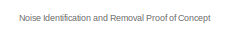
[diagram: root canvas - part 1/4, top left region]
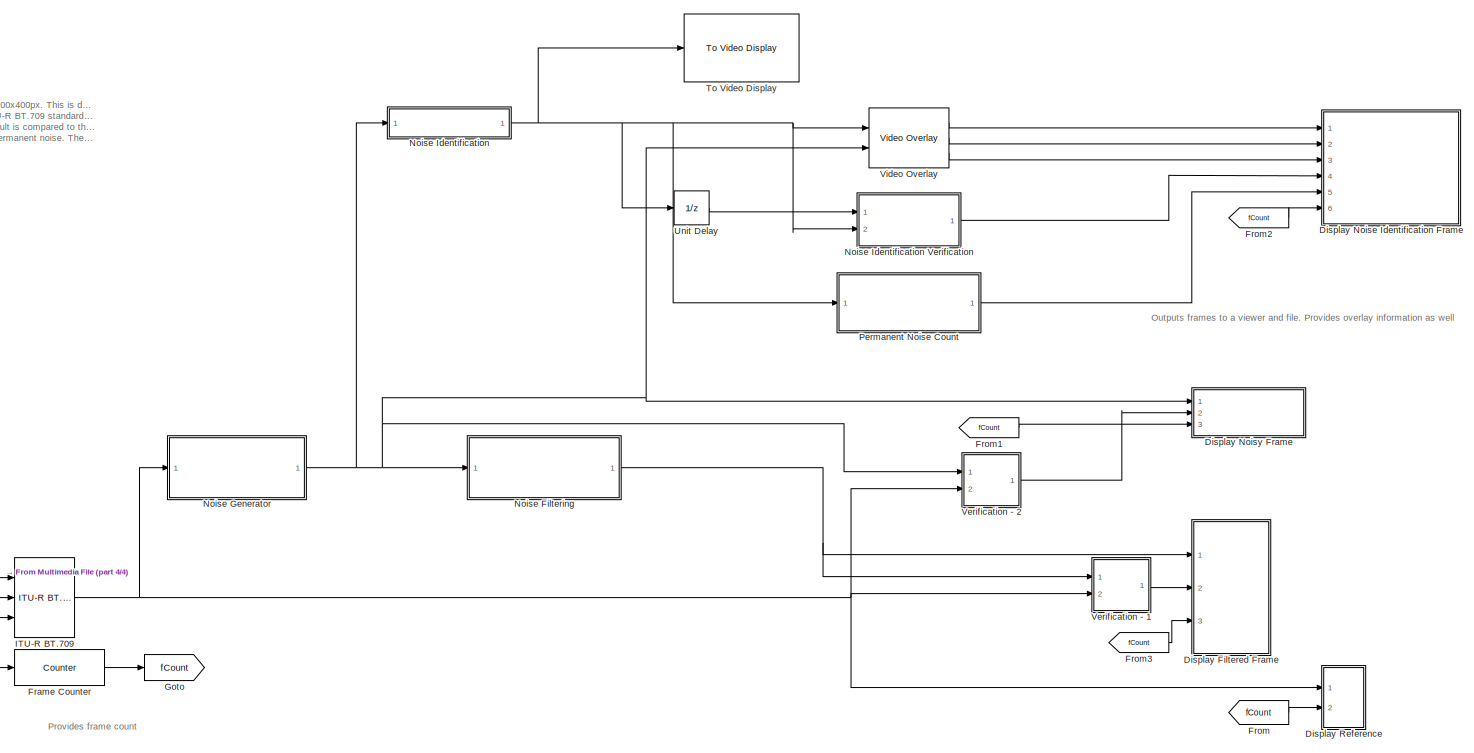
[diagram: root canvas - part 2/4, most of the canvas]
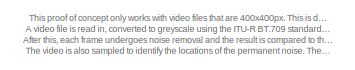
[diagram: root canvas - part 3/4, top left region]
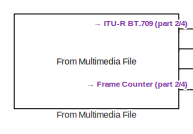
[diagram: root canvas - part 4/4, bottom left region]
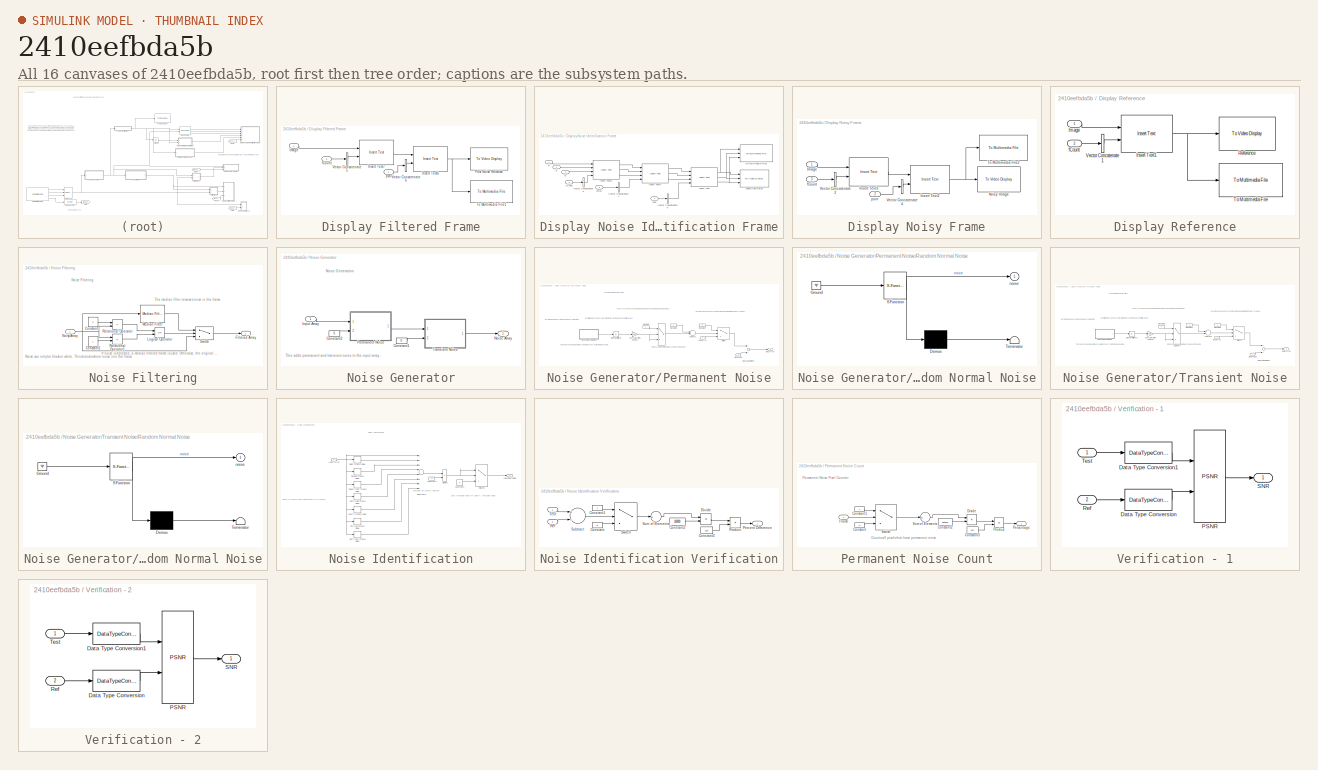
[diagram: thumbnail index - all 16 canvases of the model, root first then tree order]
MODEL slx_2410eefbda5b
KIND model
CONFIG AbsTol = auto
CONFIG EnableMultiTasking = off
CONFIG FixedStep = auto
CONFIG MaxStep = auto
CONFIG MinStep = auto
CONFIG RelTol = 1e-3
CONFIG SampleTimeConstraint = Unconstrained
CONFIG Solver = VariableStepAuto
CONFIG SolverName = VariableStepAuto
CONFIG StartTime = 1
CONFIG StopTime = 16
BLOCK [SubSystem] Display Filtered Frame
  Ports = [3]
  RequestExecContextInheritance = off
BLOCK [Inport] Display Filtered Frame/Image
  IconDisplay = Port number
BLOCK [Reference] Display Filtered Frame/Insert Text6  REF=visiontextngfix/Insert Text
  Ports = [2, 1]
  SourceBlock = visiontextngfix/Insert Text
  SourceProductBaseCode = VP
  SourceProductName = Computer Vision System Toolbox
  SourceType = Insert Text
BLOCK [Reference] Display Filtered Frame/Insert Text7  REF=visiontextngfix/Insert Text
  Ports = [2, 1]
  SourceBlock = visiontextngfix/Insert Text
  SourceProductBaseCode = VP
  SourceProductName = Computer Vision System Toolbox
  SourceType = Insert Text
BLOCK [Reference] Display Filtered Frame/Post Noise Removal  REF=visionsinks/To Video Display
  Ports = [1]
  SourceBlock = visionsinks/To Video Display
  SourceProductBaseCode = VP
  SourceProductName = Computer Vision System Toolbox
  SourceType = To Video Display
BLOCK [Reference] Display Filtered Frame/To Multimedia File1  REF=dspvision/To Multimedia File
  Ports = [1]
  SourceBlock = dspvision/To Multimedia File
  SourceProductBaseCode = VP
  SourceProductName = Computer Vision System Toolbox
  SourceType = To Multimedia File
BLOCK [Concatenate] Display Filtered Frame/Vector Concatenate5
  NumInputs = 1
  Ports = [1, 1]
BLOCK [Concatenate] Display Filtered Frame/Vector Concatenate6
  NumInputs = 1
  Ports = [1, 1]
BLOCK [Inport] Display Filtered Frame/fCount
  IconDisplay = Port number
  Port = 3
BLOCK [Inport] Display Filtered Frame/psnr
  IconDisplay = Port number
  Port = 2
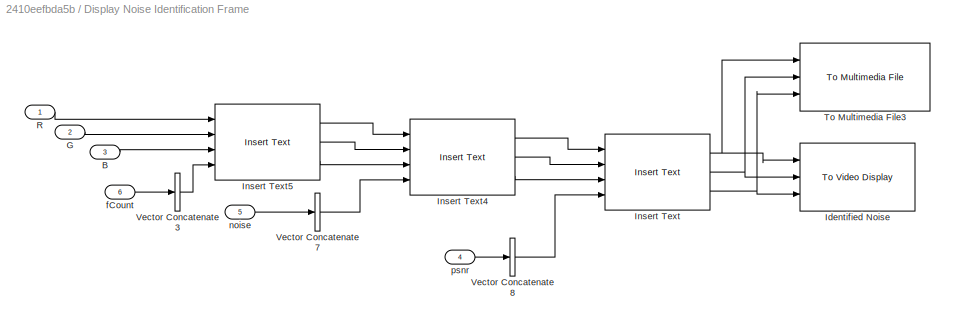
BLOCK [SubSystem] Display Noise Identification Frame
  Ports = [6]
  RequestExecContextInheritance = off
BLOCK [Inport] Display Noise Identification Frame/B
  IconDisplay = Port number
  Port = 3
BLOCK [Inport] Display Noise Identification Frame/G
  IconDisplay = Port number
  Port = 2
BLOCK [Reference] Display Noise Identification Frame/Identified Noise  REF=visionsinks/To Video Display
  Ports = [3]
  SourceBlock = visionsinks/To Video Display
  SourceProductBaseCode = VP
  SourceProductName = Computer Vision System Toolbox
  SourceType = To Video Display
BLOCK [Reference] Display Noise Identification Frame/Insert Text  REF=visiontextngfix/Insert Text
  Ports = [4, 3]
  SourceBlock = visiontextngfix/Insert Text
  SourceProductBaseCode = VP
  SourceProductName = Computer Vision System Toolbox
  SourceType = Insert Text
BLOCK [Reference] Display Noise Identification Frame/Insert Text4  REF=visiontextngfix/Insert Text
  Ports = [4, 3]
  SourceBlock = visiontextngfix/Insert Text
  SourceProductBaseCode = VP
  SourceProductName = Computer Vision System Toolbox
  SourceType = Insert Text
BLOCK [Reference] Display Noise Identification Frame/Insert Text5  REF=visiontextngfix/Insert Text
  Ports = [4, 3]
  SourceBlock = visiontextngfix/Insert Text
  SourceProductBaseCode = VP
  SourceProductName = Computer Vision System Toolbox
  SourceType = Insert Text
BLOCK [Inport] Display Noise Identification Frame/R
  IconDisplay = Port number
BLOCK [Reference] Display Noise Identification Frame/To Multimedia File3  REF=dspvision/To Multimedia File
  Ports = [3]
  SourceBlock = dspvision/To Multimedia File
  SourceProductBaseCode = VP
  SourceProductName = Computer Vision System Toolbox
  SourceType = To Multimedia File
BLOCK [Concatenate] Display Noise Identification Frame/Vector Concatenate3
  NumInputs = 1
  Ports = [1, 1]
BLOCK [Concatenate] Display Noise Identification Frame/Vector Concatenate7
  NumInputs = 1
  Ports = [1, 1]
BLOCK [Concatenate] Display Noise Identification Frame/Vector Concatenate8
  NumInputs = 1
  Ports = [1, 1]
BLOCK [Inport] Display Noise Identification Frame/fCount
  IconDisplay = Port number
  Port = 6
BLOCK [Inport] Display Noise Identification Frame/noise
  IconDisplay = Port number
  Port = 5
BLOCK [Inport] Display Noise Identification Frame/psnr
  IconDisplay = Port number
  Port = 4
BLOCK [SubSystem] Display Noisy Frame
  Ports = [3]
  RequestExecContextInheritance = off
BLOCK [Inport] Display Noisy Frame/Image
  IconDisplay = Port number
BLOCK [Reference] Display Noisy Frame/Insert Text2  REF=visiontextngfix/Insert Text
  Ports = [2, 1]
  SourceBlock = visiontextngfix/Insert Text
  SourceProductBaseCode = VP
  SourceProductName = Computer Vision System Toolbox
  SourceType = Insert Text
BLOCK [Reference] Display Noisy Frame/Insert Text3  REF=visiontextngfix/Insert Text
  Ports = [2, 1]
  SourceBlock = visiontextngfix/Insert Text
  SourceProductBaseCode = VP
  SourceProductName = Computer Vision System Toolbox
  SourceType = Insert Text
BLOCK [Reference] Display Noisy Frame/Noisy Image  REF=visionsinks/To Video Display
  Ports = [1]
  SourceBlock = visionsinks/To Video Display
  SourceProductBaseCode = VP
  SourceProductName = Computer Vision System Toolbox
  SourceType = To Video Display
BLOCK [Reference] Display Noisy Frame/To Multimedia File2  REF=dspvision/To Multimedia File
  Ports = [1]
  SourceBlock = dspvision/To Multimedia File
  SourceProductBaseCode = VP
  SourceProductName = Computer Vision System Toolbox
  SourceType = To Multimedia File
BLOCK [Concatenate] Display Noisy Frame/Vector Concatenate2
  NumInputs = 1
  Ports = [1, 1]
BLOCK [Concatenate] Display Noisy Frame/Vector Concatenate4
  NumInputs = 1
  Ports = [1, 1]
BLOCK [Inport] Display Noisy Frame/fCount
  IconDisplay = Port number
  Port = 3
BLOCK [Inport] Display Noisy Frame/psnr
  IconDisplay = Port number
  Port = 2
BLOCK [SubSystem] Display Reference
  Ports = [2]
  RequestExecContextInheritance = off
BLOCK [Inport] Display Reference/Image
  IconDisplay = Port number
BLOCK [Reference] Display Reference/Insert Text1  REF=visiontextngfix/Insert Text
  Ports = [2, 1]
  SourceBlock = visiontextngfix/Insert Text
  SourceProductBaseCode = VP
  SourceProductName = Computer Vision System Toolbox
  SourceType = Insert Text
BLOCK [Reference] Display Reference/Reference  REF=visionsinks/To Video Display
  Ports = [1]
  SourceBlock = visionsinks/To Video Display
  SourceProductBaseCode = VP
  SourceProductName = Computer Vision System Toolbox
  SourceType = To Video Display
BLOCK [Reference] Display Reference/To Multimedia File  REF=dspvision/To Multimedia File
  Ports = [1]
  SourceBlock = dspvision/To Multimedia File
  SourceProductBaseCode = VP
  SourceProductName = Computer Vision System Toolbox
  SourceType = To Multimedia File
BLOCK [Concatenate] Display Reference/Vector Concatenate1
  NumInputs = 1
  Ports = [1, 1]
BLOCK [Inport] Display Reference/fCount
  IconDisplay = Port number
  Port = 2
BLOCK [Reference] Frame Counter  REF=dspswit3/Counter
  Ports = [1, 1]
  SourceBlock = dspswit3/Counter
  SourceProductBaseCode = DS
  SourceProductName = DSP System Toolbox
  SourceType = Counter
BLOCK [From] From
  GotoTag = fCount
BLOCK [Reference] From Multimedia File  REF=dspvision/From Multimedia File
  Ports = [0, 4]
  SourceBlock = dspvision/From Multimedia File
  SourceProductBaseCode = VP
  SourceProductName = Computer Vision System Toolbox
  SourceType = From Multimedia File
BLOCK [From] From1
  GotoTag = fCount
BLOCK [From] From2
  GotoTag = fCount
BLOCK [From] From3
  GotoTag = fCount
BLOCK [Goto] Goto
  GotoTag = fCount
BLOCK [Reference] ITU-R BT.709  REF=library/ITU-R BT.709  (lib defined in slx_3ff6af1150bc, slx_4edaf752ec85, +11 more)
  Ports = [3, 1]
  SourceBlock = library/ITU-R BT.709
  SourceType = SubSystem
BLOCK [SubSystem] Noise Filtering
  Ports = [1, 1]
  RequestExecContextInheritance = off
BLOCK [Constant] Noise Filtering/Constant
  SampleTime = -1
  Value = 0
BLOCK [Constant] Noise Filtering/Constant1
  SampleTime = -1
BLOCK [Outport] Noise Filtering/Filtered Array
  IconDisplay = Port number
BLOCK [Logic] Noise Filtering/Logical Operator
  AllPortsSameDT = off
  Operator = OR
  OutDataTypeStr = boolean
  Ports = [2, 1]
BLOCK [Reference] Noise Filtering/Median Filter  REF=visionanalysis/Median Filter
  Ports = [1, 1]
  SourceBlock = visionanalysis/Median Filter
  SourceProductBaseCode = VP
  SourceProductName = Computer Vision System Toolbox
  SourceType = Median Filter
BLOCK [Inport] Noise Filtering/Noisy Array
  IconDisplay = Port number
BLOCK [RelationalOperator] Noise Filtering/Relational Operator
  InputSameDT = off
  Operator = ==
  OutDataTypeStr = boolean
  Ports = [2, 1]
BLOCK [RelationalOperator] Noise Filtering/Relational Operator1
  InputSameDT = off
  Operator = ==
  OutDataTypeStr = boolean
  Ports = [2, 1]
BLOCK [Switch] Noise Filtering/Switch
  Criteria = u2 ~= 0
  InputSameDT = off
  SaturateOnIntegerOverflow = off
BLOCK [SubSystem] Noise Generator
  Ports = [1, 1]
  RequestExecContextInheritance = off
BLOCK [Constant] Noise Generator/Constant1
  SampleTime = -1
  Value = 0
BLOCK [Constant] Noise Generator/Constant2
  SampleTime = -1
  Value = 0
BLOCK [Inport] Noise Generator/Input Array
  IconDisplay = Port number
BLOCK [Outport] Noise Generator/Noise Array
  IconDisplay = Port number
BLOCK [SubSystem] Noise Generator/Permanent Noise
  Ports = [2, 1]
  RequestExecContextInheritance = off
BLOCK [Switch] Noise Generator/Permanent Noise/Clamper
  Criteria = u2 > Threshold
  InputSameDT = off
  SaturateOnIntegerOverflow = off
  Threshold = 1
BLOCK [Inport] Noise Generator/Permanent Noise/Input Array
  IconDisplay = Port number
BLOCK [Constant] Noise Generator/Permanent Noise/Max Gain
  SampleTime = -1
BLOCK [Constant] Noise Generator/Permanent Noise/Max Gain1
  SampleTime = -1
BLOCK [Constant] Noise Generator/Permanent Noise/Max Gain2
  SampleTime = -1
BLOCK [Sum] Noise Generator/Permanent Noise/Mean Adjustment
  InputSameDT = off
  OutDataTypeStr = Inherit: Inherit via internal rule
  Ports = [2, 1]
  SaturateOnIntegerOverflow = off
BLOCK [Inport] Noise Generator/Permanent Noise/Mean Value
  IconDisplay = Port number
  Port = 2
BLOCK [Outport] Noise Generator/Permanent Noise/Noisy Array
  IconDisplay = Port number
BLOCK [Gain] Noise Generator/Permanent Noise/Oversaturation Control
  Gain = Gain
  OutDataTypeStr = Inherit: Inherit via internal rule
  ParamDataTypeStr = Inherit: Inherit via internal rule
  SaturateOnIntegerOverflow = off
BLOCK [SubSystem] Noise Generator/Permanent Noise/Random Normal Noise
  ErrorFcn = Stateflow.Translate.translate
  PermitHierarchicalResolution = ExplicitOnly
  Ports = [0, 1]
  RequestExecContextInheritance = off
  SFBlockType = MATLAB Function
  TreatAsAtomicUnit = on
BLOCK [Demux] Noise Generator/Permanent Noise/Random Normal Noise/ Demux 
  Outputs = 1
  Ports = [1, 1]
BLOCK [Ground] Noise Generator/Permanent Noise/Random Normal Noise/ Ground 
BLOCK [S-Function] Noise Generator/Permanent Noise/Random Normal Noise/ SFunction 
  EnableBusSupport = on
  FunctionName = sf_sfun
  PortCounts = [1 2]
  Ports = [1, 2]
  SFcnIsStateOwnerBlock = off
  SFunctionDeploymentMode = off
  Tag = Stateflow S-Function impl_dsgn 1
BLOCK [Terminator] Noise Generator/Permanent Noise/Random Normal Noise/ Terminator 
BLOCK [Outport] Noise Generator/Permanent Noise/Random Normal Noise/noise
  IconDisplay = Port number
BLOCK [Abs] Noise Generator/Permanent Noise/Sign Conditioner
  SaturateOnIntegerOverflow = off
BLOCK [Sum] Noise Generator/Permanent Noise/Subtract
  InputSameDT = off
  Inputs = +-
  OutDataTypeStr = Inherit: Inherit via internal rule
  Ports = [2, 1]
  SaturateOnIntegerOverflow = off
BLOCK [Switch] Noise Generator/Permanent Noise/Switch
  InputSameDT = off
  SaturateOnIntegerOverflow = off
  Threshold = 0.6
BLOCK [SubSystem] Noise Generator/Transient Noise
  Ports = [2, 1]
  RequestExecContextInheritance = off
BLOCK [Switch] Noise Generator/Transient Noise/Clamper1
  Criteria = u2 > Threshold
  InputSameDT = off
  SaturateOnIntegerOverflow = off
  Threshold = 1
BLOCK [Inport] Noise Generator/Transient Noise/Input Array
  IconDisplay = Port number
BLOCK [Constant] Noise Generator/Transient Noise/Max Gain3
  SampleTime = -1
BLOCK [Constant] Noise Generator/Transient Noise/Max Gain4
  SampleTime = -1
BLOCK [Constant] Noise Generator/Transient Noise/Max Gain5
  SampleTime = -1
BLOCK [Sum] Noise Generator/Transient Noise/Mean Adjustment1
  InputSameDT = off
  OutDataTypeStr = Inherit: Inherit via internal rule
  Ports = [2, 1]
  SaturateOnIntegerOverflow = off
BLOCK [Inport] Noise Generator/Transient Noise/Mean Value
  IconDisplay = Port number
  Port = 2
BLOCK [Outport] Noise Generator/Transient Noise/Noisy Array
  IconDisplay = Port number
BLOCK [Gain] Noise Generator/Transient Noise/Oversaturation Control1
  Gain = Gain
  OutDataTypeStr = Inherit: Inherit via internal rule
  ParamDataTypeStr = Inherit: Inherit via internal rule
  SaturateOnIntegerOverflow = off
BLOCK [SubSystem] Noise Generator/Transient Noise/Random Normal Noise
  ErrorFcn = Stateflow.Translate.translate
  PermitHierarchicalResolution = ExplicitOnly
  Ports = [0, 1]
  RequestExecContextInheritance = off
  SFBlockType = MATLAB Function
  TreatAsAtomicUnit = on
BLOCK [Demux] Noise Generator/Transient Noise/Random Normal Noise/ Demux 
  Outputs = 1
  Ports = [1, 1]
BLOCK [Ground] Noise Generator/Transient Noise/Random Normal Noise/ Ground 
BLOCK [S-Function] Noise Generator/Transient Noise/Random Normal Noise/ SFunction 
  EnableBusSupport = on
  FunctionName = sf_sfun
  PortCounts = [1 2]
  Ports = [1, 2]
  SFcnIsStateOwnerBlock = off
  SFunctionDeploymentMode = off
  Tag = Stateflow S-Function impl_dsgn 2
BLOCK [Terminator] Noise Generator/Transient Noise/Random Normal Noise/ Terminator 
BLOCK [Outport] Noise Generator/Transient Noise/Random Normal Noise/noise
  IconDisplay = Port number
BLOCK [Abs] Noise Generator/Transient Noise/Sign Conditioner1
  SaturateOnIntegerOverflow = off
BLOCK [Sum] Noise Generator/Transient Noise/Subtract1
  InputSameDT = off
  Inputs = +-
  OutDataTypeStr = Inherit: Inherit via internal rule
  Ports = [2, 1]
  SaturateOnIntegerOverflow = off
BLOCK [Switch] Noise Generator/Transient Noise/Switch1
  InputSameDT = off
  SaturateOnIntegerOverflow = off
  Threshold = 0.6
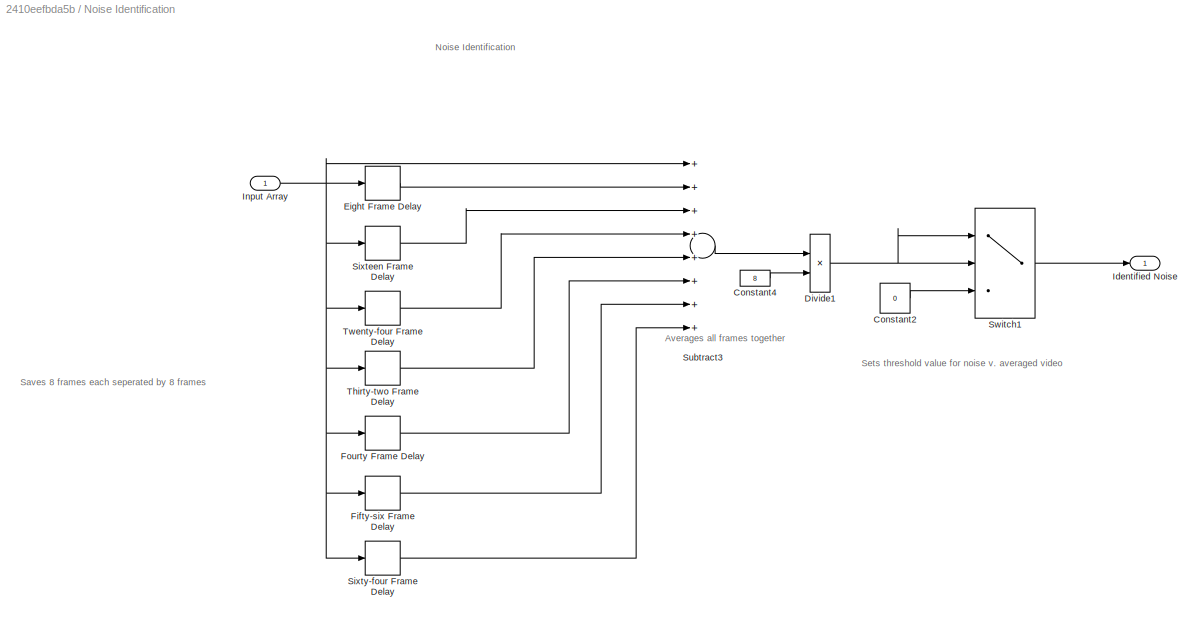
BLOCK [SubSystem] Noise Identification
  Ports = [1, 1]
  RequestExecContextInheritance = off
BLOCK [SubSystem] Noise Identification Verification
  Ports = [2, 1]
  RequestExecContextInheritance = off
BLOCK [Constant] Noise Identification Verification/Constant
  SampleTime = -1
  Value = 0
BLOCK [Constant] Noise Identification Verification/Constant1
  SampleTime = -1
BLOCK [Constant] Noise Identification Verification/Constant2
  SampleTime = -1
  Value = 160000
BLOCK [Constant] Noise Identification Verification/Constant3
  SampleTime = -1
  Value = 100
BLOCK [Product] Noise Identification Verification/Divide
  InputSameDT = off
  Inputs = */
  OutDataTypeStr = Inherit: Inherit via internal rule
  Ports = [2, 1]
BLOCK [Outport] Noise Identification Verification/Percent Difference
  IconDisplay = Port number
BLOCK [Product] Noise Identification Verification/Product
  InputSameDT = off
  OutDataTypeStr = Inherit: Inherit via internal rule
  Ports = [2, 1]
  RndMeth = Floor
  SaturateOnIntegerOverflow = off
BLOCK [Inport] Noise Identification Verification/Ref
  IconDisplay = Port number
  Port = 2
BLOCK [Sum] Noise Identification Verification/Subtract
  InputSameDT = off
  Inputs = +-
  OutDataTypeStr = Inherit: Inherit via internal rule
  Ports = [2, 1]
  SaturateOnIntegerOverflow = off
BLOCK [Sum] Noise Identification Verification/Sum of Elements
  InputSameDT = off
  Inputs = +
  OutDataTypeStr = Inherit: Inherit via internal rule
  Ports = [1, 1]
  SaturateOnIntegerOverflow = off
BLOCK [Switch] Noise Identification Verification/Switch
  Criteria = u2 ~= 0
  InputSameDT = off
  SaturateOnIntegerOverflow = off
  Threshold = 0.7
BLOCK [Inport] Noise Identification Verification/Test
  IconDisplay = Port number
BLOCK [Constant] Noise Identification/Constant2
  SampleTime = -1
  Value = 0
BLOCK [Constant] Noise Identification/Constant4
  SampleTime = -1
  Value = 8
BLOCK [Product] Noise Identification/Divide1
  InputSameDT = off
  Inputs = */
  OutDataTypeStr = Inherit: Inherit via internal rule
  Ports = [2, 1]
BLOCK [Delay] Noise Identification/Eight Frame Delay
  DelayLength = 8
  InputPortMap = u0
  Ports = [1, 1]
BLOCK [Delay] Noise Identification/Fifty-six Frame Delay
  DelayLength = 56
  InputPortMap = u0
  Ports = [1, 1]
BLOCK [Delay] Noise Identification/Fourty Frame Delay
  DelayLength = 40
  InputPortMap = u0
  Ports = [1, 1]
BLOCK [Outport] Noise Identification/Identified Noise
  IconDisplay = Port number
BLOCK [Inport] Noise Identification/Input Array
  IconDisplay = Port number
BLOCK [Delay] Noise Identification/Sixteen Frame Delay
  DelayLength = 16
  InputPortMap = u0
  Ports = [1, 1]
BLOCK [Delay] Noise Identification/Sixty-four Frame Delay
  DelayLength = 64
  InputPortMap = u0
  Ports = [1, 1]
BLOCK [Sum] Noise Identification/Subtract3
  InputSameDT = off
  Inputs = ++++++++
  OutDataTypeStr = Inherit: Inherit via internal rule
  Ports = [8, 1]
  SaturateOnIntegerOverflow = off
BLOCK [Switch] Noise Identification/Switch1
  Criteria = u2 > Threshold
  InputSameDT = off
  SaturateOnIntegerOverflow = off
  Threshold = 0.95
BLOCK [Delay] Noise Identification/Thirty-two Frame Delay
  DelayLength = 32
  InputPortMap = u0
  Ports = [1, 1]
BLOCK [Delay] Noise Identification/Twenty-four Frame Delay
  DelayLength = 24
  InputPortMap = u0
  Ports = [1, 1]
BLOCK [SubSystem] Permanent Noise Count
  Ports = [1, 1]
  RequestExecContextInheritance = off
BLOCK [Constant] Permanent Noise Count/Constant
  SampleTime = -1
  Value = 0
BLOCK [Constant] Permanent Noise Count/Constant1
  SampleTime = -1
BLOCK [Constant] Permanent Noise Count/Constant2
  SampleTime = -1
  Value = 160000
BLOCK [Constant] Permanent Noise Count/Constant3
  SampleTime = -1
  Value = 100
BLOCK [Product] Permanent Noise Count/Divide
  InputSameDT = off
  Inputs = */
  OutDataTypeStr = Inherit: Inherit via internal rule
  Ports = [2, 1]
BLOCK [Inport] Permanent Noise Count/Frame
  IconDisplay = Port number
BLOCK [Outport] Permanent Noise Count/Percentage
  IconDisplay = Port number
BLOCK [Product] Permanent Noise Count/Product
  InputSameDT = off
  OutDataTypeStr = Inherit: Inherit via internal rule
  Ports = [2, 1]
  RndMeth = Floor
  SaturateOnIntegerOverflow = off
BLOCK [Sum] Permanent Noise Count/Sum of Elements
  InputSameDT = off
  Inputs = +
  OutDataTypeStr = Inherit: Inherit via internal rule
  Ports = [1, 1]
  SaturateOnIntegerOverflow = off
BLOCK [Switch] Permanent Noise Count/Switch
  InputSameDT = off
  SaturateOnIntegerOverflow = off
  Threshold = 0.7
BLOCK [Reference] To Video Display  REF=visionsinks/To Video Display
  Ports = [1]
  SourceBlock = visionsinks/To Video Display
  SourceProductBaseCode = VP
  SourceProductName = Computer Vision System Toolbox
  SourceType = To Video Display
BLOCK [UnitDelay] Unit Delay
  InputProcessing = Elements as channels (sample based)
  SampleTime = -1
BLOCK [SubSystem] Verification - 1
  Ports = [2, 1]
  RequestExecContextInheritance = off
BLOCK [DataTypeConversion] Verification - 1/Data Type Conversion
  OutDataTypeStr = double
  RndMeth = Floor
  SaturateOnIntegerOverflow = off
BLOCK [DataTypeConversion] Verification - 1/Data Type Conversion1
  OutDataTypeStr = double
  RndMeth = Floor
  SaturateOnIntegerOverflow = off
BLOCK [Reference] Verification - 1/PSNR  REF=visionstatistics/PSNR
  Ports = [2, 1]
  SourceBlock = visionstatistics/PSNR
  SourceProductBaseCode = VP
  SourceProductName = Computer Vision System Toolbox
  SourceType = PSNR
BLOCK [Inport] Verification - 1/Ref
  IconDisplay = Port number
  Port = 2
BLOCK [Outport] Verification - 1/SNR
  IconDisplay = Port number
BLOCK [Inport] Verification - 1/Test
  IconDisplay = Port number
BLOCK [SubSystem] Verification - 2
  Ports = [2, 1]
  RequestExecContextInheritance = off
BLOCK [DataTypeConversion] Verification - 2/Data Type Conversion
  OutDataTypeStr = double
  RndMeth = Floor
  SaturateOnIntegerOverflow = off
BLOCK [DataTypeConversion] Verification - 2/Data Type Conversion1
  OutDataTypeStr = double
  RndMeth = Floor
  SaturateOnIntegerOverflow = off
BLOCK [Reference] Verification - 2/PSNR  REF=visionstatistics/PSNR
  Ports = [2, 1]
  SourceBlock = visionstatistics/PSNR
  SourceProductBaseCode = VP
  SourceProductName = Computer Vision System Toolbox
  SourceType = PSNR
BLOCK [Inport] Verification - 2/Ref
  IconDisplay = Port number
  Port = 2
BLOCK [Outport] Verification - 2/SNR
  IconDisplay = Port number
BLOCK [Inport] Verification - 2/Test
  IconDisplay = Port number
BLOCK [Reference] Video Overlay  REF=library/Video Overlay  (lib defined in slx_3ff6af1150bc, slx_4edaf752ec85, +11 more)
  Ports = [2, 3]
  SourceBlock = library/Video Overlay
ANNOTATION (root): Noise Identification and Removal Proof of Concept
ANNOTATION (root): Outputs frames to a viewer and file. Provides overlay information as well
ANNOTATION (root): Provides frame count
ANNOTATION (root): This proof of concept only works with video files that are 400x400px. This is due to a limitation in the noise generation and a constant to identify the total number of pixels in the image. A video file is read in, converted to greyscale using the ITU-R BT.709 standard. Then, noise is added to each frame (both permanent and transient noise). After this, each frame undergoes noise removal and the r...<+269ch>
ANNOTATION Noise Filtering: Noise Filtering
ANNOTATION Noise Filtering: If noise is detected, a median filtered frame is used. Otherwise, the original frame is used.
ANNOTATION Noise Filtering: Noise can only be black or white. This detects where noise is in the frame
ANNOTATION Noise Filtering: The median filter removes noise in the frame.
ANNOTATION Noise Generator: Noise Generation
ANNOTATION Noise Generator: This adds permanent and transient noise to the input array.
ANNOTATION Noise Generator/Permanent Noise: Permanent Noise Generation
ANNOTATION Noise Generator/Permanent Noise: By multiplying by an oversaturation factor, certain noise can be filtered out.
ANNOTATION Noise Generator/Permanent Noise: Here, the noise upper threshold is set and is applied to the input array. Noise is either 100% or 0%.
ANNOTATION Noise Generator/Permanent Noise: Noise should be white, not black. This inverts the noise
ANNOTATION Noise Generator/Permanent Noise: Normal noise is generated using a MATLAB function.
ANNOTATION Noise Generator/Permanent Noise: The array can only have a maximum value of one. This clamps the noise to a maximum value of one.
ANNOTATION Noise Generator/Permanent Noise: This noise can be both positive or negative. To correct for this, the absolute value of each cell is taken.
ANNOTATION Noise Generator/Transient Noise: Transient Noise Generation
ANNOTATION Noise Generator/Transient Noise: By multiplying by an oversaturation factor, certain noise can be filtered out.
ANNOTATION Noise Generator/Transient Noise: Here, the noise upper threshold is set and is applied to the input array. Noise is either 100% or 0%.
ANNOTATION Noise Generator/Transient Noise: Noise should be white, not black. This inverts the noise
ANNOTATION Noise Generator/Transient Noise: Normal noise is generated using a MATLAB function.
ANNOTATION Noise Generator/Transient Noise: The array can only have a maximum value of one. This clamps the noise to a maximum value of one.
ANNOTATION Noise Generator/Transient Noise: This noise can be both positive or negative. To correct for this, the absolute value of each cell is taken.
ANNOTATION Noise Identification: Noise Identification
ANNOTATION Noise Identification: Averages all frames together
ANNOTATION Noise Identification: Saves 8 frames each seperated by 8 frames
ANNOTATION Noise Identification: Sets threshold value for noise v. averaged video
ANNOTATION Permanent Noise Count: Permanent Noise Pixel Counter
ANNOTATION Permanent Noise Count: Counts all pixels that have permanent noise
LINE Display Filtered Frame/Image:1 -> Display Filtered Frame/Insert Text7:1
NET Display Filtered Frame/Insert Text6:1 -> Display Filtered Frame/Post Noise Removal:1, Display Filtered Frame/To Multimedia File1:1
LINE Display Filtered Frame/Insert Text7:1 -> Display Filtered Frame/Insert Text6:1
LINE Display Filtered Frame/Vector Concatenate5:1 -> Display Filtered Frame/Insert Text7:2
LINE Display Filtered Frame/Vector Concatenate6:1 -> Display Filtered Frame/Insert Text6:2
LINE Display Filtered Frame/fCount:1 -> Display Filtered Frame/Vector Concatenate5:1
LINE Display Filtered Frame/psnr:1 -> Display Filtered Frame/Vector Concatenate6:1
LINE Display Noise Identification Frame/B:1 -> Display Noise Identification Frame/Insert Text5:3
LINE Display Noise Identification Frame/G:1 -> Display Noise Identification Frame/Insert Text5:2
LINE Display Noise Identification Frame/Insert Text4:1 -> Display Noise Identification Frame/Insert Text:1
LINE Display Noise Identification Frame/Insert Text4:2 -> Display Noise Identification Frame/Insert Text:2
LINE Display Noise Identification Frame/Insert Text4:3 -> Display Noise Identification Frame/Insert Text:3
LINE Display Noise Identification Frame/Insert Text5:1 -> Display Noise Identification Frame/Insert Text4:1
LINE Display Noise Identification Frame/Insert Text5:2 -> Display Noise Identification Frame/Insert Text4:2
LINE Display Noise Identification Frame/Insert Text5:3 -> Display Noise Identification Frame/Insert Text4:3
NET Display Noise Identification Frame/Insert Text:1 -> Display Noise Identification Frame/Identified Noise:1, Display Noise Identification Frame/To Multimedia File3:1
NET Display Noise Identification Frame/Insert Text:2 -> Display Noise Identification Frame/Identified Noise:2, Display Noise Identification Frame/To Multimedia File3:2
NET Display Noise Identification Frame/Insert Text:3 -> Display Noise Identification Frame/Identified Noise:3, Display Noise Identification Frame/To Multimedia File3:3
LINE Display Noise Identification Frame/R:1 -> Display Noise Identification Frame/Insert Text5:1
LINE Display Noise Identification Frame/Vector Concatenate3:1 -> Display Noise Identification Frame/Insert Text5:4
LINE Display Noise Identification Frame/Vector Concatenate7:1 -> Display Noise Identification Frame/Insert Text4:4
LINE Display Noise Identification Frame/Vector Concatenate8:1 -> Display Noise Identification Frame/Insert Text:4
LINE Display Noise Identification Frame/fCount:1 -> Display Noise Identification Frame/Vector Concatenate3:1
LINE Display Noise Identification Frame/noise:1 -> Display Noise Identification Frame/Vector Concatenate7:1
LINE Display Noise Identification Frame/psnr:1 -> Display Noise Identification Frame/Vector Concatenate8:1
LINE Display Noisy Frame/Image:1 -> Display Noisy Frame/Insert Text3:1
NET Display Noisy Frame/Insert Text2:1 -> Display Noisy Frame/Noisy Image:1, Display Noisy Frame/To Multimedia File2:1
LINE Display Noisy Frame/Insert Text3:1 -> Display Noisy Frame/Insert Text2:1
LINE Display Noisy Frame/Vector Concatenate2:1 -> Display Noisy Frame/Insert Text3:2
LINE Display Noisy Frame/Vector Concatenate4:1 -> Display Noisy Frame/Insert Text2:2
LINE Display Noisy Frame/fCount:1 -> Display Noisy Frame/Vector Concatenate2:1
LINE Display Noisy Frame/psnr:1 -> Display Noisy Frame/Vector Concatenate4:1
LINE Display Reference/Image:1 -> Display Reference/Insert Text1:1
NET Display Reference/Insert Text1:1 -> Display Reference/Reference:1, Display Reference/To Multimedia File:1
LINE Display Reference/Vector Concatenate1:1 -> Display Reference/Insert Text1:2
LINE Display Reference/fCount:1 -> Display Reference/Vector Concatenate1:1
LINE Frame Counter:1 -> Goto:1
LINE From Multimedia File:1 -> ITU-R BT.709:1
LINE From Multimedia File:2 -> ITU-R BT.709:2
LINE From Multimedia File:3 -> ITU-R BT.709:3
LINE From Multimedia File:4 -> Frame Counter:1
LINE From1:1 -> Display Noisy Frame:3
LINE From2:1 -> Display Noise Identification Frame:6
LINE From3:1 -> Display Filtered Frame:3
LINE From:1 -> Display Reference:2
NET ITU-R BT.709:1 -> Display Reference:1, Noise Generator:1, Verification - 1:2, Verification - 2:2
LINE Noise Filtering/Constant1:1 -> Noise Filtering/Relational Operator1:2
LINE Noise Filtering/Constant:1 -> Noise Filtering/Relational Operator:1
LINE Noise Filtering/Logical Operator:1 -> Noise Filtering/Switch:2
LINE Noise Filtering/Median Filter:1 -> Noise Filtering/Switch:1
NET Noise Filtering/Noisy Array:1 -> Noise Filtering/Median Filter:1, Noise Filtering/Relational Operator1:1, Noise Filtering/Relational Operator:2, Noise Filtering/Switch:3
LINE Noise Filtering/Relational Operator1:1 -> Noise Filtering/Logical Operator:2
LINE Noise Filtering/Relational Operator:1 -> Noise Filtering/Logical Operator:1
LINE Noise Filtering/Switch:1 -> Noise Filtering/Filtered Array:1
NET Noise Filtering:1 -> Display Filtered Frame:1, Verification - 1:1
LINE Noise Generator/Constant1:1 -> Noise Generator/Transient Noise:2
LINE Noise Generator/Constant2:1 -> Noise Generator/Permanent Noise:2
LINE Noise Generator/Input Array:1 -> Noise Generator/Permanent Noise:1
LINE Noise Generator/Permanent Noise/Clamper:1 -> Noise Generator/Permanent Noise/Subtract:2
LINE Noise Generator/Permanent Noise/Input Array:1 -> Noise Generator/Permanent Noise/Switch:3
LINE Noise Generator/Permanent Noise/Max Gain1:1 -> Noise Generator/Permanent Noise/Subtract:1
LINE Noise Generator/Permanent Noise/Max Gain2:1 -> Noise Generator/Permanent Noise/Switch:1
LINE Noise Generator/Permanent Noise/Max Gain:1 -> Noise Generator/Permanent Noise/Clamper:1
LINE Noise Generator/Permanent Noise/Mean Adjustment:1 -> Noise Generator/Permanent Noise/Noisy Array:1
LINE Noise Generator/Permanent Noise/Mean Value:1 -> Noise Generator/Permanent Noise/Mean Adjustment:2
NET Noise Generator/Permanent Noise/Oversaturation Control:1 -> Noise Generator/Permanent Noise/Clamper:2, Noise Generator/Permanent Noise/Clamper:3
LINE Noise Generator/Permanent Noise/Random Normal Noise:1 -> Noise Generator/Permanent Noise/Sign Conditioner:1
LINE Noise Generator/Permanent Noise/Sign Conditioner:1 -> Noise Generator/Permanent Noise/Oversaturation Control:1
LINE Noise Generator/Permanent Noise/Subtract:1 -> Noise Generator/Permanent Noise/Switch:2
LINE Noise Generator/Permanent Noise/Switch:1 -> Noise Generator/Permanent Noise/Mean Adjustment:1
LINE Noise Generator/Permanent Noise:1 -> Noise Generator/Transient Noise:1
LINE Noise Generator/Transient Noise/Clamper1:1 -> Noise Generator/Transient Noise/Subtract1:2
LINE Noise Generator/Transient Noise/Input Array:1 -> Noise Generator/Transient Noise/Switch1:3
LINE Noise Generator/Transient Noise/Max Gain3:1 -> Noise Generator/Transient Noise/Clamper1:1
LINE Noise Generator/Transient Noise/Max Gain4:1 -> Noise Generator/Transient Noise/Subtract1:1
LINE Noise Generator/Transient Noise/Max Gain5:1 -> Noise Generator/Transient Noise/Switch1:1
LINE Noise Generator/Transient Noise/Mean Adjustment1:1 -> Noise Generator/Transient Noise/Noisy Array:1
LINE Noise Generator/Transient Noise/Mean Value:1 -> Noise Generator/Transient Noise/Mean Adjustment1:2
NET Noise Generator/Transient Noise/Oversaturation Control1:1 -> Noise Generator/Transient Noise/Clamper1:2, Noise Generator/Transient Noise/Clamper1:3
LINE Noise Generator/Transient Noise/Random Normal Noise:1 -> Noise Generator/Transient Noise/Sign Conditioner1:1
LINE Noise Generator/Transient Noise/Sign Conditioner1:1 -> Noise Generator/Transient Noise/Oversaturation Control1:1
LINE Noise Generator/Transient Noise/Subtract1:1 -> Noise Generator/Transient Noise/Switch1:2
LINE Noise Generator/Transient Noise/Switch1:1 -> Noise Generator/Transient Noise/Mean Adjustment1:1
LINE Noise Generator/Transient Noise:1 -> Noise Generator/Noise Array:1
NET Noise Generator:1 -> Display Noisy Frame:1, Noise Filtering:1, Noise Identification:1, Verification - 2:1, Video Overlay:2
LINE Noise Identification Verification/Constant1:1 -> Noise Identification Verification/Switch:1
LINE Noise Identification Verification/Constant2:1 -> Noise Identification Verification/Divide:2
LINE Noise Identification Verification/Constant3:1 -> Noise Identification Verification/Product:2
LINE Noise Identification Verification/Constant:1 -> Noise Identification Verification/Switch:3
LINE Noise Identification Verification/Divide:1 -> Noise Identification Verification/Product:1
LINE Noise Identification Verification/Product:1 -> Noise Identification Verification/Percent Difference:1
LINE Noise Identification Verification/Ref:1 -> Noise Identification Verification/Subtract:2
LINE Noise Identification Verification/Subtract:1 -> Noise Identification Verification/Switch:2
LINE Noise Identification Verification/Sum of Elements:1 -> Noise Identification Verification/Divide:1
LINE Noise Identification Verification/Switch:1 -> Noise Identification Verification/Sum of Elements:1
LINE Noise Identification Verification/Test:1 -> Noise Identification Verification/Subtract:1
LINE Noise Identification Verification:1 -> Display Noise Identification Frame:4
LINE Noise Identification/Constant2:1 -> Noise Identification/Switch1:3
LINE Noise Identification/Constant4:1 -> Noise Identification/Divide1:2
NET Noise Identification/Divide1:1 -> Noise Identification/Switch1:1, Noise Identification/Switch1:2
LINE Noise Identification/Eight Frame Delay:1 -> Noise Identification/Subtract3:2
LINE Noise Identification/Fifty-six Frame Delay:1 -> Noise Identification/Subtract3:7
LINE Noise Identification/Fourty Frame Delay:1 -> Noise Identification/Subtract3:6
NET Noise Identification/Input Array:1 -> Noise Identification/Eight Frame Delay:1, Noise Identification/Fifty-six Frame Delay:1, Noise Identification/Fourty Frame Delay:1, Noise Identification/Sixteen Frame Delay:1, Noise Identification/Sixty-four Frame Delay:1, Noise Identification/Subtract3:1, Noise Identification/Thirty-two Frame Delay:1, Noise Identification/Twenty-four Frame Delay:1
LINE Noise Identification/Sixteen Frame Delay:1 -> Noise Identification/Subtract3:3
LINE Noise Identification/Sixty-four Frame Delay:1 -> Noise Identification/Subtract3:8
LINE Noise Identification/Subtract3:1 -> Noise Identification/Divide1:1
LINE Noise Identification/Switch1:1 -> Noise Identification/Identified Noise:1
LINE Noise Identification/Thirty-two Frame Delay:1 -> Noise Identification/Subtract3:5
LINE Noise Identification/Twenty-four Frame Delay:1 -> Noise Identification/Subtract3:4
NET Noise Identification:1 -> Noise Identification Verification:2, Permanent Noise Count:1, To Video Display:1, Unit Delay:1, Video Overlay:1
LINE Permanent Noise Count/Constant1:1 -> Permanent Noise Count/Switch:1
LINE Permanent Noise Count/Constant2:1 -> Permanent Noise Count/Divide:2
LINE Permanent Noise Count/Constant3:1 -> Permanent Noise Count/Product:2
LINE Permanent Noise Count/Constant:1 -> Permanent Noise Count/Switch:3
LINE Permanent Noise Count/Divide:1 -> Permanent Noise Count/Product:1
LINE Permanent Noise Count/Frame:1 -> Permanent Noise Count/Switch:2
LINE Permanent Noise Count/Product:1 -> Permanent Noise Count/Percentage:1
LINE Permanent Noise Count/Sum of Elements:1 -> Permanent Noise Count/Divide:1
LINE Permanent Noise Count/Switch:1 -> Permanent Noise Count/Sum of Elements:1
LINE Permanent Noise Count:1 -> Display Noise Identification Frame:5
LINE Unit Delay:1 -> Noise Identification Verification:1
LINE Verification - 1/Data Type Conversion1:1 -> Verification - 1/PSNR:1
LINE Verification - 1/Data Type Conversion:1 -> Verification - 1/PSNR:2
LINE Verification - 1/PSNR:1 -> Verification - 1/SNR:1
LINE Verification - 1/Ref:1 -> Verification - 1/Data Type Conversion:1
LINE Verification - 1/Test:1 -> Verification - 1/Data Type Conversion1:1
LINE Verification - 1:1 -> Display Filtered Frame:2
LINE Verification - 2/Data Type Conversion1:1 -> Verification - 2/PSNR:1
LINE Verification - 2/Data Type Conversion:1 -> Verification - 2/PSNR:2
LINE Verification - 2/PSNR:1 -> Verification - 2/SNR:1
LINE Verification - 2/Ref:1 -> Verification - 2/Data Type Conversion:1
LINE Verification - 2/Test:1 -> Verification - 2/Data Type Conversion1:1
LINE Verification - 2:1 -> Display Noisy Frame:2
LINE Video Overlay:1 -> Display Noise Identification Frame:1
LINE Video Overlay:2 -> Display Noise Identification Frame:2
LINE Video Overlay:3 -> Display Noise Identification Frame:3
note: NET lines group one-source signal fan-out (src -> all destinations, sorted); 1:1 wires keep LINE
CHART Noise Generator/Permanent Noise/Random Normal Noise states=1 transitions=1
  STATE_LABEL 'eML_blk_kernel()'
  STATE_LABEL 'SCRIPT:\nfunction noise = fcn()\n    rng(100);\n    noise = randn(400);'
CHART Noise Generator/Transient Noise/Random Normal Noise states=1 transitions=1
  STATE_LABEL 'eML_blk_kernel()'
  STATE_LABEL "SCRIPT:\nfunction noise = fcn()\n    rng('shuffle');\n    noise = randn(400);"
